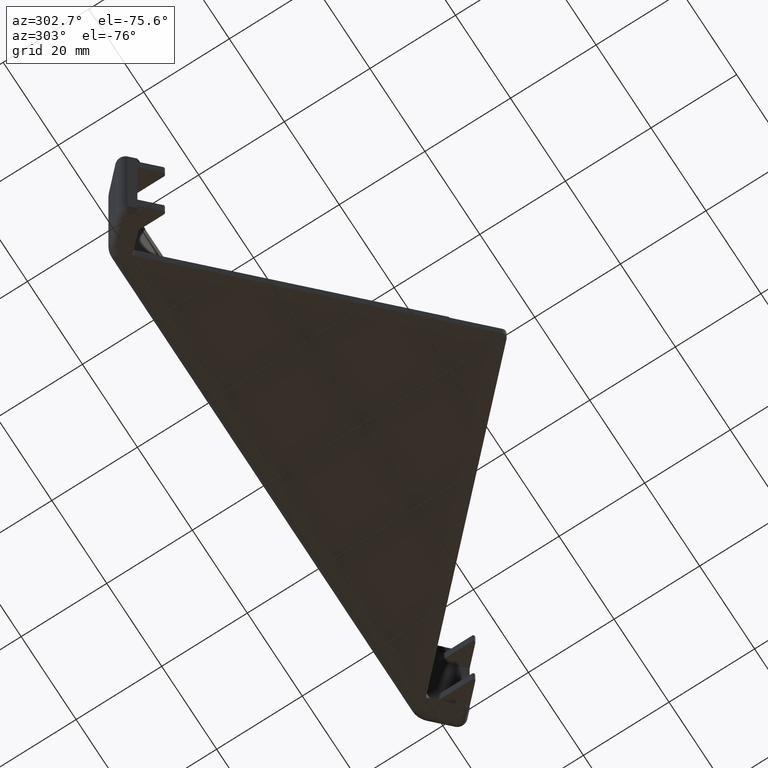
[diagram: clean part render]
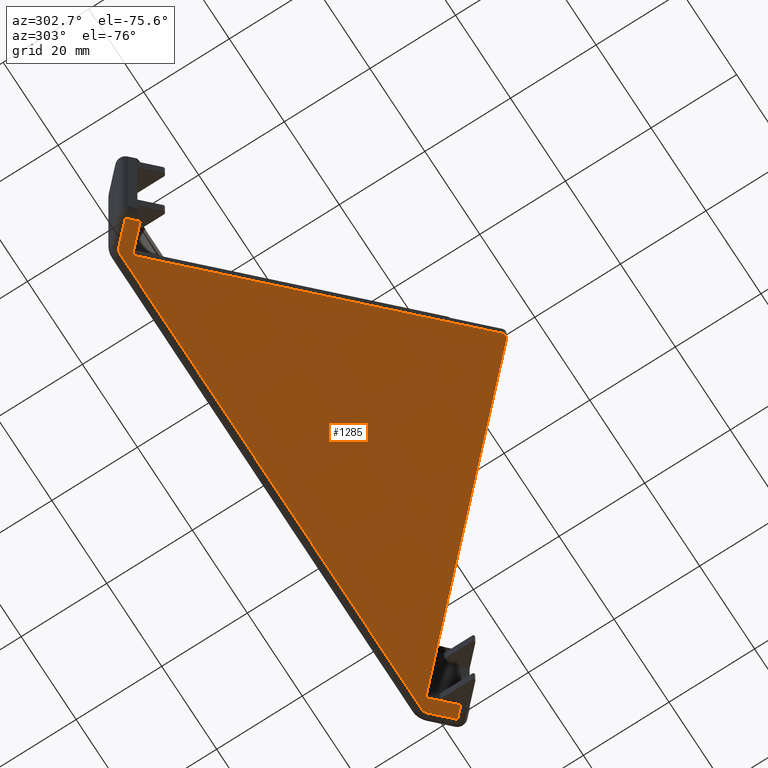
[diagram: same view with one face highlighted and labeled with its STEP entity id]
A machine part, auxiliary view. The second image highlights one B-rep face of the part: STEP entity #1285.
In plain terms, the highlighted planar face has unit normal (0, 0, -1).
Its self-contained STEP definition (entity closure, byte-faithful):
#26=PLANE('',#1387);
#79=LINE('',#1937,#218);
#80=LINE('',#1939,#219);
#81=LINE('',#1941,#220);
#82=LINE('',#1945,#221);
#83=LINE('',#1949,#222);
#84=LINE('',#1953,#223);
#85=LINE('',#1955,#224);
#86=LINE('',#1957,#225);
#87=LINE('',#1961,#226);
#218=VECTOR('',#1539,1000.);
#219=VECTOR('',#1540,1000.);
#220=VECTOR('',#1541,1000.);
#221=VECTOR('',#1544,1000.);
#222=VECTOR('',#1547,1000.);
#223=VECTOR('',#1550,1000.);
#224=VECTOR('',#1551,1000.);
#225=VECTOR('',#1552,1000.);
#226=VECTOR('',#1555,1000.);
#374=FACE_OUTER_BOUND('',#449,.T.);
#449=EDGE_LOOP('',(#906,#907,#908,#909,#910,#911,#912,#913,#914,#915,#916,
#917,#918,#919));
#527=CIRCLE('',#1388,1.);
#528=CIRCLE('',#1389,1.);
#529=CIRCLE('',#1390,1.);
#530=CIRCLE('',#1391,2.);
#531=CIRCLE('',#1392,2.);
#574=VERTEX_POINT('',#1908);
#585=VERTEX_POINT('',#1936);
#586=VERTEX_POINT('',#1938);
#587=VERTEX_POINT('',#1940);
#588=VERTEX_POINT('',#1942);
#589=VERTEX_POINT('',#1944);
#590=VERTEX_POINT('',#1946);
#591=VERTEX_POINT('',#1948);
#592=VERTEX_POINT('',#1950);
#593=VERTEX_POINT('',#1952);
#594=VERTEX_POINT('',#1954);
#595=VERTEX_POINT('',#1956);
#596=VERTEX_POINT('',#1958);
#597=VERTEX_POINT('',#1960);
#709=EDGE_CURVE('',#585,#574,#79,.T.);
#710=EDGE_CURVE('',#574,#586,#80,.T.);
#711=EDGE_CURVE('',#587,#586,#81,.T.);
#712=EDGE_CURVE('',#587,#588,#527,.T.);
#713=EDGE_CURVE('',#589,#588,#82,.T.);
#714=EDGE_CURVE('',#589,#590,#528,.T.);
#715=EDGE_CURVE('',#590,#591,#83,.T.);
#716=EDGE_CURVE('',#591,#592,#529,.T.);
#717=EDGE_CURVE('',#592,#593,#84,.T.);
#718=EDGE_CURVE('',#593,#594,#85,.T.);
#719=EDGE_CURVE('',#594,#595,#86,.T.);
#720=EDGE_CURVE('',#596,#595,#530,.T.);
#721=EDGE_CURVE('',#596,#597,#87,.T.);
#722=EDGE_CURVE('',#585,#597,#531,.T.);
#906=ORIENTED_EDGE('',*,*,#709,.T.);
#907=ORIENTED_EDGE('',*,*,#710,.T.);
#908=ORIENTED_EDGE('',*,*,#711,.F.);
#909=ORIENTED_EDGE('',*,*,#712,.T.);
#910=ORIENTED_EDGE('',*,*,#713,.F.);
#911=ORIENTED_EDGE('',*,*,#714,.T.);
#912=ORIENTED_EDGE('',*,*,#715,.T.);
#913=ORIENTED_EDGE('',*,*,#716,.T.);
#914=ORIENTED_EDGE('',*,*,#717,.T.);
#915=ORIENTED_EDGE('',*,*,#718,.T.);
#916=ORIENTED_EDGE('',*,*,#719,.T.);
#917=ORIENTED_EDGE('',*,*,#720,.F.);
#918=ORIENTED_EDGE('',*,*,#721,.T.);
#919=ORIENTED_EDGE('',*,*,#722,.F.);
#1285=ADVANCED_FACE('',(#374),#26,.T.);
#1387=AXIS2_PLACEMENT_3D('',#1935,#1537,#1538);
#1388=AXIS2_PLACEMENT_3D('',#1943,#1542,#1543);
#1389=AXIS2_PLACEMENT_3D('',#1947,#1545,#1546);
#1390=AXIS2_PLACEMENT_3D('',#1951,#1548,#1549);
#1391=AXIS2_PLACEMENT_3D('',#1959,#1553,#1554);
#1392=AXIS2_PLACEMENT_3D('',#1962,#1556,#1557);
#1537=DIRECTION('center_axis',(0.,0.,-1.));
#1538=DIRECTION('ref_axis',(-1.,0.,0.));
#1539=DIRECTION('',(0.707106781186559,-0.707106781186536,0.));
#1540=DIRECTION('',(-0.707106781186544,-0.707106781186551,0.));
#1541=DIRECTION('',(0.707106781186555,-0.70710678118654,0.));
#1542=DIRECTION('center_axis',(0.,0.,1.));
#1543=DIRECTION('ref_axis',(-1.,-2.84060969191202E-14,0.));
#1544=DIRECTION('',(0.707106781186542,0.707106781186553,0.));
#1545=DIRECTION('center_axis',(0.,0.,-1.));
#1546=DIRECTION('ref_axis',(-1.,0.,0.));
#1547=DIRECTION('',(-0.707106781186554,0.707106781186541,0.));
#1548=DIRECTION('center_axis',(0.,0.,1.));
#1549=DIRECTION('ref_axis',(-1.,3.0140820395097E-14,0.));
#1550=DIRECTION('',(-0.707106781186543,-0.707106781186552,0.));
#1551=DIRECTION('',(-0.707106781186555,0.70710678118654,0.));
#1552=DIRECTION('',(0.707106781186547,0.707106781186547,0.));
#1553=DIRECTION('center_axis',(0.,0.,1.));
#1554=DIRECTION('ref_axis',(-1.,-1.06581410364015E-14,0.));
#1555=DIRECTION('',(1.,-2.09257357653368E-16,0.));
#1556=DIRECTION('center_axis',(0.,0.,1.));
#1557=DIRECTION('ref_axis',(-1.,-3.5527136788005E-15,0.));
#1908=CARTESIAN_POINT('',(60.9464466094061,-2.8180194846596,-21.5));
#1935=CARTESIAN_POINT('Origin',(-60.3,-3.17157287525385,-21.5));
#1936=CARTESIAN_POINT('',(56.7142135623733,1.41421356237299,-21.5));
#1937=CARTESIAN_POINT('',(62.3606601717792,-4.23223304703269,-21.5));
#1938=CARTESIAN_POINT('',(58.8251262658465,-4.93933982821922,-21.5));
#1939=CARTESIAN_POINT('',(58.8251262658465,-4.93933982821922,-21.5));
#1940=CARTESIAN_POINT('',(53.9344589388079,-0.0486725011807744,-21.5));
#1941=CARTESIAN_POINT('',(59.1786796564397,-5.2928932188125,-21.5));
#1942=CARTESIAN_POINT('',(53.5355339059323,-0.292893218812595,-21.5));
#1943=CARTESIAN_POINT('Origin',(54.2426406871189,-0.999999999999137,-21.5));
#1944=CARTESIAN_POINT('',(1.20710678118659,-52.6213203435591,-21.5));
#1945=CARTESIAN_POINT('',(8.8284271247457,-44.9999999999999,-21.5));
#1946=CARTESIAN_POINT('',(-0.207106781186501,-52.6213203435591,-21.5));
#1947=CARTESIAN_POINT('Origin',(0.50000000000004,-51.9142135623726,-21.5));
#1948=CARTESIAN_POINT('',(-52.5355339059331,-0.292893218813449,-21.5));
#1949=CARTESIAN_POINT('',(-7.82842712474573,-45.,-21.5));
#1950=CARTESIAN_POINT('',(-52.9344589388087,-0.0486725011816314,-21.5));
#1951=CARTESIAN_POINT('Origin',(-53.2426406871196,-1.,-21.5));
#1952=CARTESIAN_POINT('',(-57.8251262658471,-4.93933982822016,-21.5));
#1953=CARTESIAN_POINT('',(-58.1786796564404,-5.29289321881344,-21.5));
#1954=CARTESIAN_POINT('',(-59.9464466094068,-2.81801948466057,-21.5));
#1955=CARTESIAN_POINT('',(-59.9464466094068,-2.81801948466055,-21.5));
#1956=CARTESIAN_POINT('',(-55.7142135623732,1.41421356237299,-21.5));
#1957=CARTESIAN_POINT('',(-54.5426406871194,2.5857864376268,-21.5));
#1958=CARTESIAN_POINT('',(-54.3000000000001,1.9999999999999,-21.5));
#1959=CARTESIAN_POINT('Origin',(-54.3000000000001,-1.01828032286909E-13,
-21.5));
#1960=CARTESIAN_POINT('',(55.3000000000003,1.99999999999988,-21.5));
#1961=CARTESIAN_POINT('',(56.9568542494917,1.99999999999988,-21.5));
#1962=CARTESIAN_POINT('Origin',(55.3000000000003,-1.2490009027033E-13,-21.5));